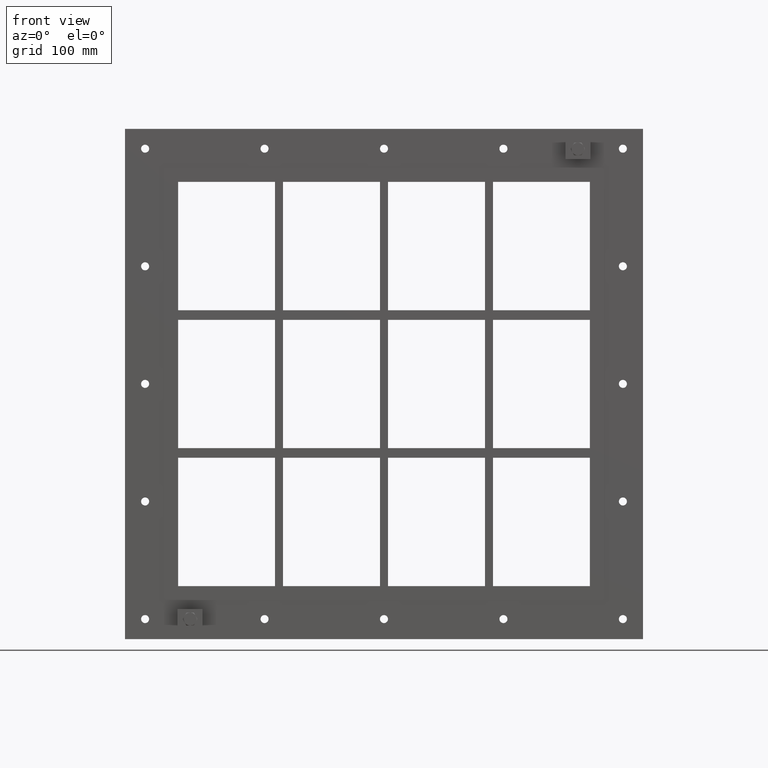
[diagram: clean part render]
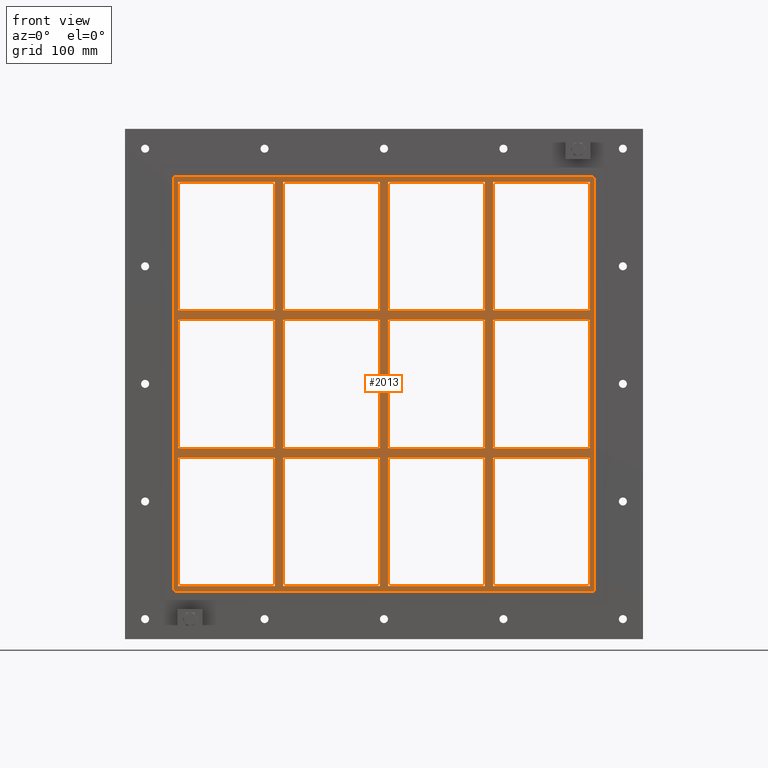
[diagram: same view with one face highlighted and labeled with its STEP entity id]
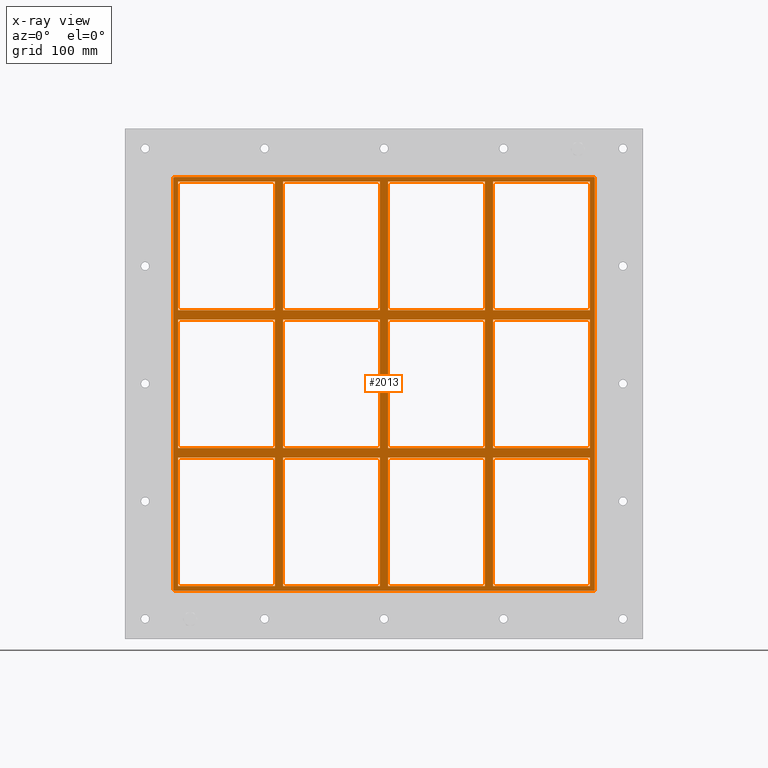
[diagram: x-ray of the same camera — body ghosted, the highlighted face saturated]
A machine part, front view. The second image highlights one B-rep face of the part: STEP entity #2013.
The next image is the same camera in x-ray: the body ghosted, the highlighted face saturated — about 0% of this face is hidden behind the body in this view.
In plain terms, the highlighted planar face has unit normal (0, 1, 0).
Its self-contained STEP definition (entity closure, byte-faithful):
#521=CARTESIAN_POINT('',(-135.50000000000031,-3.0,79.749999999989114));
#522=VERTEX_POINT('',#521);
#531=CARTESIAN_POINT('',(-255.99999999999866,-3.0,79.749999999989114));
#532=VERTEX_POINT('',#531);
#533=CARTESIAN_POINT('',(-135.50000000000034,-3.0,79.7499999999891));
#534=DIRECTION('',(-1.0,0.0,0.0));
#535=VECTOR('',#534,120.49999999999829);
#536=LINE('',#533,#535);
#537=EDGE_CURVE('',#522,#532,#536,.T.);
#561=CARTESIAN_POINT('',(-5.000000000000284,-3.0,79.749999999989086));
#562=VERTEX_POINT('',#561);
#571=CARTESIAN_POINT('',(-125.49999999999272,-3.0,79.749999999989114));
#572=VERTEX_POINT('',#571);
#573=CARTESIAN_POINT('',(-5.000000000000284,-3.0,79.749999999989086));
#574=DIRECTION('',(-1.0,0.0,0.0));
#575=VECTOR('',#574,120.49999999999244);
#576=LINE('',#573,#575);
#577=EDGE_CURVE('',#562,#572,#576,.T.);
#603=CARTESIAN_POINT('',(135.50000000000728,-3.0,79.749999999989086));
#604=VERTEX_POINT('',#603);
#619=CARTESIAN_POINT('',(256.00000000000364,-3.0,79.749999999989072));
#620=VERTEX_POINT('',#619);
#627=CARTESIAN_POINT('',(256.00000000000364,-3.0,79.749999999989072));
#628=DIRECTION('',(-1.0,0.0,0.0));
#629=VECTOR('',#628,120.49999999999636);
#630=LINE('',#627,#629);
#631=EDGE_CURVE('',#620,#604,#630,.T.);
#641=CARTESIAN_POINT('',(125.4999999999997,-3.0,79.749999999989086));
#642=VERTEX_POINT('',#641);
#651=CARTESIAN_POINT('',(5.000000000007283,-3.0,79.749999999989086));
#652=VERTEX_POINT('',#651);
#653=CARTESIAN_POINT('',(125.49999999999972,-3.0,79.749999999989086));
#654=DIRECTION('',(-1.0,0.0,0.0));
#655=VECTOR('',#654,120.49999999999244);
#656=LINE('',#653,#655);
#657=EDGE_CURVE('',#642,#652,#656,.T.);
#683=CARTESIAN_POINT('',(-135.50000000000031,-3.0,91.749999999999801));
#684=VERTEX_POINT('',#683);
#699=CARTESIAN_POINT('',(-255.99999999999866,-3.0,91.749999999999801));
#700=VERTEX_POINT('',#699);
#707=CARTESIAN_POINT('',(-255.99999999999866,-3.0,91.749999999999801));
#708=DIRECTION('',(1.0,0.0,0.0));
#709=VECTOR('',#708,120.49999999999835);
#710=LINE('',#707,#709);
#711=EDGE_CURVE('',#700,#684,#710,.T.);
#721=CARTESIAN_POINT('',(135.50000000000728,-3.0,91.749999999999801));
#722=VERTEX_POINT('',#721);
#731=CARTESIAN_POINT('',(255.99999999999955,-3.0,91.749999999999801));
#732=VERTEX_POINT('',#731);
#733=CARTESIAN_POINT('',(135.5000000000073,-3.0,91.749999999999801));
#734=DIRECTION('',(1.0,0.0,0.0));
#735=VECTOR('',#734,120.49999999999221);
#736=LINE('',#733,#735);
#737=EDGE_CURVE('',#722,#732,#736,.T.);
#763=CARTESIAN_POINT('',(-5.000000000000284,-3.0,91.749999999999801));
#764=VERTEX_POINT('',#763);
#779=CARTESIAN_POINT('',(-125.49999999999272,-3.0,91.749999999999801));
#780=VERTEX_POINT('',#779);
#787=CARTESIAN_POINT('',(-125.49999999999272,-3.0,91.749999999999801));
#788=DIRECTION('',(1.0,0.0,0.0));
#789=VECTOR('',#788,120.49999999999244);
#790=LINE('',#787,#789);
#791=EDGE_CURVE('',#780,#764,#790,.T.);
#803=CARTESIAN_POINT('',(125.49999999999969,-3.0,91.749999999999801));
#804=VERTEX_POINT('',#803);
#819=CARTESIAN_POINT('',(5.000000000007283,-3.0,91.749999999999801));
#820=VERTEX_POINT('',#819);
#827=CARTESIAN_POINT('',(5.000000000007304,-3.0,91.749999999999801));
#828=DIRECTION('',(1.0,0.0,0.0));
#829=VECTOR('',#828,120.49999999999238);
#830=LINE('',#827,#829);
#831=EDGE_CURVE('',#820,#804,#830,.T.);
#850=CARTESIAN_POINT('',(-256.0,-3.0,251.25000000000003));
#851=VERTEX_POINT('',#850);
#858=CARTESIAN_POINT('',(-256.00000000000006,-3.0,91.749999999999815));
#859=DIRECTION('',(0.0,0.0,1.0));
#860=VECTOR('',#859,159.50000000000023);
#861=LINE('',#858,#860);
#862=EDGE_CURVE('',#700,#851,#861,.T.);
#881=CARTESIAN_POINT('',(255.99999999999955,-3.0,-79.750000000000227));
#882=VERTEX_POINT('',#881);
#889=CARTESIAN_POINT('',(256.0,-3.0,79.749999999989072));
#890=DIRECTION('',(0.0,0.0,-1.0));
#891=VECTOR('',#890,159.49999999998929);
#892=LINE('',#889,#891);
#893=EDGE_CURVE('',#620,#882,#892,.T.);
#904=CARTESIAN_POINT('',(256.0,-3.0,251.25000000000003));
#905=VERTEX_POINT('',#904);
#906=CARTESIAN_POINT('',(256.0,-3.0,251.25000000000003));
#907=DIRECTION('',(0.0,0.0,-1.0));
#908=VECTOR('',#907,159.50000000000023);
#909=LINE('',#906,#908);
#910=EDGE_CURVE('',#905,#732,#909,.T.);
#935=CARTESIAN_POINT('',(125.49999999999969,-3.0,251.25000000000003));
#936=VERTEX_POINT('',#935);
#937=CARTESIAN_POINT('',(125.49999999999972,-3.0,91.749999999999801));
#938=DIRECTION('',(0.0,0.0,1.0));
#939=VECTOR('',#938,159.50000000000023);
#940=LINE('',#937,#939);
#941=EDGE_CURVE('',#804,#936,#940,.T.);
#974=CARTESIAN_POINT('',(135.50000000000728,-3.0,251.25000000000003));
#975=VERTEX_POINT('',#974);
#982=CARTESIAN_POINT('',(135.50000000000728,-3.0,251.25000000000003));
#983=DIRECTION('',(0.0,0.0,-1.0));
#984=VECTOR('',#983,159.50000000000023);
#985=LINE('',#982,#984);
#986=EDGE_CURVE('',#975,#722,#985,.T.);
#997=CARTESIAN_POINT('',(-5.00000000000032,-3.0,251.25000000000003));
#998=VERTEX_POINT('',#997);
#999=CARTESIAN_POINT('',(-5.000000000000298,-3.0,91.749999999999801));
#1000=DIRECTION('',(0.0,0.0,1.0));
#1001=VECTOR('',#1000,159.50000000000023);
#1002=LINE('',#999,#1001);
#1003=EDGE_CURVE('',#764,#998,#1002,.T.);
#1036=CARTESIAN_POINT('',(5.000000000007283,-3.0,251.25000000000003));
#1037=VERTEX_POINT('',#1036);
#1044=CARTESIAN_POINT('',(5.000000000007283,-3.0,251.25000000000003));
#1045=DIRECTION('',(0.0,0.0,-1.0));
#1046=VECTOR('',#1045,159.50000000000023);
#1047=LINE('',#1044,#1046);
#1048=EDGE_CURVE('',#1037,#820,#1047,.T.);
#1059=CARTESIAN_POINT('',(-135.50000000000034,-3.0,251.25000000000003));
#1060=VERTEX_POINT('',#1059);
#1061=CARTESIAN_POINT('',(-135.50000000000031,-3.0,91.749999999999801));
#1062=DIRECTION('',(0.0,0.0,1.0));
#1063=VECTOR('',#1062,159.50000000000023);
#1064=LINE('',#1061,#1063);
#1065=EDGE_CURVE('',#684,#1060,#1064,.T.);
#1098=CARTESIAN_POINT('',(-135.50000000000028,-3.0,-79.750000000000227));
#1099=VERTEX_POINT('',#1098);
#1106=CARTESIAN_POINT('',(-135.50000000000028,-3.0,-79.750000000000227));
#1107=DIRECTION('',(0.0,0.0,1.0));
#1108=VECTOR('',#1107,159.49999999998934);
#1109=LINE('',#1106,#1108);
#1110=EDGE_CURVE('',#1099,#522,#1109,.T.);
#1129=CARTESIAN_POINT('',(-125.49999999999272,-3.0,251.25000000000003));
#1130=VERTEX_POINT('',#1129);
#1137=CARTESIAN_POINT('',(-125.49999999999272,-3.0,251.25000000000003));
#1138=DIRECTION('',(0.0,0.0,-1.0));
#1139=VECTOR('',#1138,159.50000000000023);
#1140=LINE('',#1137,#1139);
#1141=EDGE_CURVE('',#1130,#780,#1140,.T.);
#1477=CARTESIAN_POINT('',(125.49999999999974,-3.0,-79.750000000000227));
#1478=VERTEX_POINT('',#1477);
#1485=CARTESIAN_POINT('',(125.49999999999973,-3.0,-79.750000000000227));
#1486=DIRECTION('',(0.0,0.0,1.0));
#1487=VECTOR('',#1486,159.49999999998934);
#1488=LINE('',#1485,#1487);
#1489=EDGE_CURVE('',#1478,#642,#1488,.T.);
#1499=CARTESIAN_POINT('',(125.49999999999974,-3.0,-91.750000000010928));
#1500=VERTEX_POINT('',#1499);
#1508=CARTESIAN_POINT('',(125.49999999999976,-3.0,-251.25000000000003));
#1509=VERTEX_POINT('',#1508);
#1516=CARTESIAN_POINT('',(125.49999999999976,-3.0,-251.25000000000003));
#1517=DIRECTION('',(0.0,0.0,1.0));
#1518=VECTOR('',#1517,159.49999999998911);
#1519=LINE('',#1516,#1518);
#1520=EDGE_CURVE('',#1509,#1500,#1519,.T.);
#1531=CARTESIAN_POINT('',(135.50000000000728,-3.0,-79.750000000000199));
#1532=VERTEX_POINT('',#1531);
#1533=CARTESIAN_POINT('',(135.50000000000728,-3.0,79.749999999989058));
#1534=DIRECTION('',(0.0,0.0,-1.0));
#1535=VECTOR('',#1534,159.49999999998926);
#1536=LINE('',#1533,#1535);
#1537=EDGE_CURVE('',#604,#1532,#1536,.T.);
#1554=CARTESIAN_POINT('',(135.50000000000728,-3.0,-91.750000000010942));
#1555=VERTEX_POINT('',#1554);
#1562=CARTESIAN_POINT('',(135.50000000000728,-3.0,-251.24999999998175));
#1563=VERTEX_POINT('',#1562);
#1564=CARTESIAN_POINT('',(135.50000000000728,-3.0,-91.750000000010942));
#1565=DIRECTION('',(0.0,0.0,-1.0));
#1566=VECTOR('',#1565,159.49999999997084);
#1567=LINE('',#1564,#1566);
#1568=EDGE_CURVE('',#1555,#1563,#1567,.T.);
#1587=CARTESIAN_POINT('',(-5.000000000000274,-3.0,-79.750000000000227));
#1588=VERTEX_POINT('',#1587);
#1595=CARTESIAN_POINT('',(-5.000000000000273,-3.0,-79.750000000000227));
#1596=DIRECTION('',(0.0,0.0,1.0));
#1597=VECTOR('',#1596,159.49999999998934);
#1598=LINE('',#1595,#1597);
#1599=EDGE_CURVE('',#1588,#562,#1598,.T.);
#1609=CARTESIAN_POINT('',(-5.000000000000271,-3.0,-91.750000000010928));
#1610=VERTEX_POINT('',#1609);
#1618=CARTESIAN_POINT('',(-5.000000000000249,-3.0,-251.25000000000003));
#1619=VERTEX_POINT('',#1618);
#1626=CARTESIAN_POINT('',(-5.000000000000249,-3.0,-251.25000000000003));
#1627=DIRECTION('',(0.0,0.0,1.0));
#1628=VECTOR('',#1627,159.49999999998911);
#1629=LINE('',#1626,#1628);
#1630=EDGE_CURVE('',#1619,#1610,#1629,.T.);
#1641=CARTESIAN_POINT('',(5.000000000007283,-3.0,-79.750000000000199));
#1642=VERTEX_POINT('',#1641);
#1643=CARTESIAN_POINT('',(5.000000000007283,-3.0,79.749999999989114));
#1644=DIRECTION('',(0.0,0.0,-1.0));
#1645=VECTOR('',#1644,159.49999999998931);
#1646=LINE('',#1643,#1645);
#1647=EDGE_CURVE('',#652,#1642,#1646,.T.);
#1664=CARTESIAN_POINT('',(5.000000000007283,-3.0,-91.750000000010942));
#1665=VERTEX_POINT('',#1664);
#1672=CARTESIAN_POINT('',(5.000000000007283,-3.0,-251.24999999998175));
#1673=VERTEX_POINT('',#1672);
#1674=CARTESIAN_POINT('',(5.000000000007283,-3.0,-91.750000000010942));
#1675=DIRECTION('',(0.0,0.0,-1.0));
#1676=VECTOR('',#1675,159.49999999997084);
#1677=LINE('',#1674,#1676);
#1678=EDGE_CURVE('',#1665,#1673,#1677,.T.);
#1697=CARTESIAN_POINT('',(-125.49999999999272,-3.0,-251.24999999998175));
#1698=VERTEX_POINT('',#1697);
#1705=CARTESIAN_POINT('',(-5.000000000000256,-3.0,-251.25000000000003));
#1706=DIRECTION('',(-1.0,0.0,0.0));
#1707=VECTOR('',#1706,120.49999999999247);
#1708=LINE('',#1705,#1707);
#1709=EDGE_CURVE('',#1619,#1698,#1708,.T.);
#1722=CARTESIAN_POINT('',(125.49999999999974,-3.0,-251.25000000000003));
#1723=DIRECTION('',(-1.0,0.0,0.0));
#1724=VECTOR('',#1723,120.49999999999247);
#1725=LINE('',#1722,#1724);
#1726=EDGE_CURVE('',#1509,#1673,#1725,.T.);
#1737=CARTESIAN_POINT('',(256.0,-3.0,-251.25000000000003));
#1738=VERTEX_POINT('',#1737);
#1739=CARTESIAN_POINT('',(256.0,-3.0,-251.25000000000003));
#1740=DIRECTION('',(-1.0,0.0,0.0));
#1741=VECTOR('',#1740,120.49999999999272);
#1742=LINE('',#1739,#1741);
#1743=EDGE_CURVE('',#1738,#1563,#1742,.T.);
#1755=CARTESIAN_POINT('',(0.0,-3.0,0.0));
#1756=DIRECTION('',(0.0,1.0,0.0));
#1757=DIRECTION('',(0.0,0.0,1.0));
#1758=AXIS2_PLACEMENT_3D('',#1755,#1756,#1757);
#1759=PLANE('',#1758);
#1760=CARTESIAN_POINT('',(-260.0,-3.0,-257.25));
#1761=VERTEX_POINT('',#1760);
#1762=CARTESIAN_POINT('',(-262.0,-3.0,-255.25));
#1763=VERTEX_POINT('',#1762);
#1764=CARTESIAN_POINT('',(-260.0,-3.0,-255.25));
#1765=DIRECTION('',(0.0,1.0,0.0));
#1766=DIRECTION('',(-0.707106781186548,0.0,-0.707106781186548));
#1767=AXIS2_PLACEMENT_3D('',#1764,#1765,#1766);
#1768=CIRCLE('',#1767,2.0);
#1769=EDGE_CURVE('',#1761,#1763,#1768,.T.);
#1770=ORIENTED_EDGE('',*,*,#1769,.F.);
#1771=CARTESIAN_POINT('',(260.0,-3.0,-257.25));
#1772=VERTEX_POINT('',#1771);
#1773=CARTESIAN_POINT('',(-260.0,-3.0,-257.25));
#1774=DIRECTION('',(1.0,0.0,0.0));
#1775=VECTOR('',#1774,520.0);
#1776=LINE('',#1773,#1775);
#1777=EDGE_CURVE('',#1761,#1772,#1776,.T.);
#1778=ORIENTED_EDGE('',*,*,#1777,.T.);
#1779=CARTESIAN_POINT('',(262.0,-3.0,-255.25));
#1780=VERTEX_POINT('',#1779);
#1781=CARTESIAN_POINT('',(260.0,-3.0,-255.25));
#1782=DIRECTION('',(0.0,1.0,0.0));
#1783=DIRECTION('',(0.707106781186548,0.0,-0.707106781186548));
#1784=AXIS2_PLACEMENT_3D('',#1781,#1782,#1783);
#1785=CIRCLE('',#1784,2.0);
#1786=EDGE_CURVE('',#1780,#1772,#1785,.T.);
#1787=ORIENTED_EDGE('',*,*,#1786,.F.);
#1788=CARTESIAN_POINT('',(262.0,-3.0,255.25000000000003));
#1789=VERTEX_POINT('',#1788);
#1790=CARTESIAN_POINT('',(262.0,-3.0,-255.25));
#1791=DIRECTION('',(0.0,0.0,1.0));
#1792=VECTOR('',#1791,510.5);
#1793=LINE('',#1790,#1792);
#1794=EDGE_CURVE('',#1780,#1789,#1793,.T.);
#1795=ORIENTED_EDGE('',*,*,#1794,.T.);
#1796=CARTESIAN_POINT('',(260.0,-3.0,257.25));
#1797=VERTEX_POINT('',#1796);
#1798=CARTESIAN_POINT('',(260.0,-3.0,255.25000000000003));
#1799=DIRECTION('',(0.0,1.0,0.0));
#1800=DIRECTION('',(0.70710678118656,0.0,0.707106781186535));
#1801=AXIS2_PLACEMENT_3D('',#1798,#1799,#1800);
#1802=CIRCLE('',#1801,2.0);
#1803=EDGE_CURVE('',#1797,#1789,#1802,.T.);
#1804=ORIENTED_EDGE('',*,*,#1803,.F.);
#1805=CARTESIAN_POINT('',(-260.0,-3.0,257.25));
#1806=VERTEX_POINT('',#1805);
#1807=CARTESIAN_POINT('',(260.0,-3.0,257.25));
#1808=DIRECTION('',(-1.0,0.0,0.0));
#1809=VECTOR('',#1808,520.0);
#1810=LINE('',#1807,#1809);
#1811=EDGE_CURVE('',#1797,#1806,#1810,.T.);
#1812=ORIENTED_EDGE('',*,*,#1811,.T.);
#1813=CARTESIAN_POINT('',(-262.0,-3.0,255.25));
#1814=VERTEX_POINT('',#1813);
#1815=CARTESIAN_POINT('',(-260.0,-3.0,255.25));
#1816=DIRECTION('',(0.0,1.0,0.0));
#1817=DIRECTION('',(-0.707106781186548,0.0,0.707106781186548));
#1818=AXIS2_PLACEMENT_3D('',#1815,#1816,#1817);
#1819=CIRCLE('',#1818,2.0);
#1820=EDGE_CURVE('',#1814,#1806,#1819,.T.);
#1821=ORIENTED_EDGE('',*,*,#1820,.F.);
#1822=CARTESIAN_POINT('',(-262.0,-3.0,255.25));
#1823=DIRECTION('',(0.0,0.0,-1.0));
#1824=VECTOR('',#1823,510.5);
#1825=LINE('',#1822,#1824);
#1826=EDGE_CURVE('',#1814,#1763,#1825,.T.);
#1827=ORIENTED_EDGE('',*,*,#1826,.T.);
#1828=EDGE_LOOP('',(#1770,#1778,#1787,#1795,#1804,#1812,#1821,#1827));
#1829=FACE_OUTER_BOUND('',#1828,.T.);
#1830=ORIENTED_EDGE('',*,*,#862,.T.);
#1831=CARTESIAN_POINT('',(-256.0,-3.0,251.25000000000003));
#1832=DIRECTION('',(1.0,0.0,0.0));
#1833=VECTOR('',#1832,120.49999999999966);
#1834=LINE('',#1831,#1833);
#1835=EDGE_CURVE('',#851,#1060,#1834,.T.);
#1836=ORIENTED_EDGE('',*,*,#1835,.T.);
#1837=ORIENTED_EDGE('',*,*,#1065,.F.);
#1838=ORIENTED_EDGE('',*,*,#711,.F.);
#1839=EDGE_LOOP('',(#1830,#1836,#1837,#1838));
#1840=FACE_BOUND('',#1839,.T.);
#1841=ORIENTED_EDGE('',*,*,#893,.T.);
#1842=CARTESIAN_POINT('',(135.5000000000073,-3.0,-79.750000000000227));
#1843=DIRECTION('',(1.0,0.0,0.0));
#1844=VECTOR('',#1843,120.49999999999221);
#1845=LINE('',#1842,#1844);
#1846=EDGE_CURVE('',#1532,#882,#1845,.T.);
#1847=ORIENTED_EDGE('',*,*,#1846,.F.);
#1848=ORIENTED_EDGE('',*,*,#1537,.F.);
#1849=ORIENTED_EDGE('',*,*,#631,.F.);
#1850=EDGE_LOOP('',(#1841,#1847,#1848,#1849));
#1851=FACE_BOUND('',#1850,.T.);
#1852=ORIENTED_EDGE('',*,*,#1489,.F.);
#1853=CARTESIAN_POINT('',(5.000000000007304,-3.0,-79.750000000000227));
#1854=DIRECTION('',(1.0,0.0,0.0));
#1855=VECTOR('',#1854,120.49999999999244);
#1856=LINE('',#1853,#1855);
#1857=EDGE_CURVE('',#1642,#1478,#1856,.T.);
#1858=ORIENTED_EDGE('',*,*,#1857,.F.);
#1859=ORIENTED_EDGE('',*,*,#1647,.F.);
#1860=ORIENTED_EDGE('',*,*,#657,.F.);
#1861=EDGE_LOOP('',(#1852,#1858,#1859,#1860));
#1862=FACE_BOUND('',#1861,.T.);
#1863=ORIENTED_EDGE('',*,*,#1599,.F.);
#1864=CARTESIAN_POINT('',(-125.49999999999272,-3.0,-79.750000000000227));
#1865=VERTEX_POINT('',#1864);
#1866=CARTESIAN_POINT('',(-125.49999999999272,-3.0,-79.750000000000227));
#1867=DIRECTION('',(1.0,0.0,0.0));
#1868=VECTOR('',#1867,120.49999999999244);
#1869=LINE('',#1866,#1868);
#1870=EDGE_CURVE('',#1865,#1588,#1869,.T.);
#1871=ORIENTED_EDGE('',*,*,#1870,.F.);
#1872=CARTESIAN_POINT('',(-125.49999999999272,-3.0,79.749999999989114));
#1873=DIRECTION('',(0.0,0.0,-1.0));
#1874=VECTOR('',#1873,159.49999999998931);
#1875=LINE('',#1872,#1874);
#1876=EDGE_CURVE('',#572,#1865,#1875,.T.);
#1877=ORIENTED_EDGE('',*,*,#1876,.F.);
#1878=ORIENTED_EDGE('',*,*,#577,.F.);
#1879=EDGE_LOOP('',(#1863,#1871,#1877,#1878));
#1880=FACE_BOUND('',#1879,.T.);
#1881=ORIENTED_EDGE('',*,*,#831,.F.);
#1882=ORIENTED_EDGE('',*,*,#1048,.F.);
#1883=CARTESIAN_POINT('',(5.000000000007276,-3.0,251.25000000000003));
#1884=DIRECTION('',(1.0,0.0,0.0));
#1885=VECTOR('',#1884,120.49999999999241);
#1886=LINE('',#1883,#1885);
#1887=EDGE_CURVE('',#1037,#936,#1886,.T.);
#1888=ORIENTED_EDGE('',*,*,#1887,.T.);
#1889=ORIENTED_EDGE('',*,*,#941,.F.);
#1890=EDGE_LOOP('',(#1881,#1882,#1888,#1889));
#1891=FACE_BOUND('',#1890,.T.);
#1892=ORIENTED_EDGE('',*,*,#791,.F.);
#1893=ORIENTED_EDGE('',*,*,#1141,.F.);
#1894=CARTESIAN_POINT('',(-125.49999999999272,-3.0,251.25000000000003));
#1895=DIRECTION('',(1.0,0.0,0.0));
#1896=VECTOR('',#1895,120.4999999999924);
#1897=LINE('',#1894,#1896);
#1898=EDGE_CURVE('',#1130,#998,#1897,.T.);
#1899=ORIENTED_EDGE('',*,*,#1898,.T.);
#1900=ORIENTED_EDGE('',*,*,#1003,.F.);
#1901=EDGE_LOOP('',(#1892,#1893,#1899,#1900));
#1902=FACE_BOUND('',#1901,.T.);
#1903=ORIENTED_EDGE('',*,*,#537,.F.);
#1904=ORIENTED_EDGE('',*,*,#1110,.F.);
#1905=CARTESIAN_POINT('',(-255.99999999999866,-3.0,-79.750000000000227));
#1906=VERTEX_POINT('',#1905);
#1907=CARTESIAN_POINT('',(-255.99999999999866,-3.0,-79.750000000000227));
#1908=DIRECTION('',(1.0,0.0,0.0));
#1909=VECTOR('',#1908,120.49999999999838);
#1910=LINE('',#1907,#1909);
#1911=EDGE_CURVE('',#1906,#1099,#1910,.T.);
#1912=ORIENTED_EDGE('',*,*,#1911,.F.);
#1913=CARTESIAN_POINT('',(-256.00000000000006,-3.0,-79.750000000000227));
#1914=DIRECTION('',(0.0,0.0,1.0));
#1915=VECTOR('',#1914,159.49999999998937);
#1916=LINE('',#1913,#1915);
#1917=EDGE_CURVE('',#1906,#532,#1916,.T.);
#1918=ORIENTED_EDGE('',*,*,#1917,.T.);
#1919=EDGE_LOOP('',(#1903,#1904,#1912,#1918));
#1920=FACE_BOUND('',#1919,.T.);
#1921=ORIENTED_EDGE('',*,*,#737,.F.);
#1922=ORIENTED_EDGE('',*,*,#986,.F.);
#1923=CARTESIAN_POINT('',(135.5000000000073,-3.0,251.25000000000003));
#1924=DIRECTION('',(1.0,0.0,0.0));
#1925=VECTOR('',#1924,120.4999999999927);
#1926=LINE('',#1923,#1925);
#1927=EDGE_CURVE('',#975,#905,#1926,.T.);
#1928=ORIENTED_EDGE('',*,*,#1927,.T.);
#1929=ORIENTED_EDGE('',*,*,#910,.T.);
#1930=EDGE_LOOP('',(#1921,#1922,#1928,#1929));
#1931=FACE_BOUND('',#1930,.T.);
#1932=ORIENTED_EDGE('',*,*,#1726,.T.);
#1933=ORIENTED_EDGE('',*,*,#1678,.F.);
#1934=CARTESIAN_POINT('',(125.49999999999974,-3.0,-91.750000000010928));
#1935=DIRECTION('',(-1.0,0.0,0.0));
#1936=VECTOR('',#1935,120.49999999999247);
#1937=LINE('',#1934,#1936);
#1938=EDGE_CURVE('',#1500,#1665,#1937,.T.);
#1939=ORIENTED_EDGE('',*,*,#1938,.F.);
#1940=ORIENTED_EDGE('',*,*,#1520,.F.);
#1941=EDGE_LOOP('',(#1932,#1933,#1939,#1940));
#1942=FACE_BOUND('',#1941,.T.);
#1943=ORIENTED_EDGE('',*,*,#1709,.T.);
#1944=CARTESIAN_POINT('',(-125.49999999999272,-3.0,-91.750000000010928));
#1945=VERTEX_POINT('',#1944);
#1946=CARTESIAN_POINT('',(-125.49999999999272,-3.0,-91.750000000010942));
#1947=DIRECTION('',(0.0,0.0,-1.0));
#1948=VECTOR('',#1947,159.49999999997084);
#1949=LINE('',#1946,#1948);
#1950=EDGE_CURVE('',#1945,#1698,#1949,.T.);
#1951=ORIENTED_EDGE('',*,*,#1950,.F.);
#1952=CARTESIAN_POINT('',(-5.000000000000284,-3.0,-91.750000000010928));
#1953=DIRECTION('',(-1.0,0.0,0.0));
#1954=VECTOR('',#1953,120.49999999999244);
#1955=LINE('',#1952,#1954);
#1956=EDGE_CURVE('',#1610,#1945,#1955,.T.);
#1957=ORIENTED_EDGE('',*,*,#1956,.F.);
#1958=ORIENTED_EDGE('',*,*,#1630,.F.);
#1959=EDGE_LOOP('',(#1943,#1951,#1957,#1958));
#1960=FACE_BOUND('',#1959,.T.);
#1961=ORIENTED_EDGE('',*,*,#1568,.F.);
#1962=CARTESIAN_POINT('',(256.00000000000364,-3.0,-91.750000000010942));
#1963=VERTEX_POINT('',#1962);
#1964=CARTESIAN_POINT('',(256.00000000000364,-3.0,-91.750000000010942));
#1965=DIRECTION('',(-1.0,0.0,0.0));
#1966=VECTOR('',#1965,120.49999999999636);
#1967=LINE('',#1964,#1966);
#1968=EDGE_CURVE('',#1963,#1555,#1967,.T.);
#1969=ORIENTED_EDGE('',*,*,#1968,.F.);
#1970=CARTESIAN_POINT('',(256.0,-3.0,-91.750000000010957));
#1971=DIRECTION('',(0.0,0.0,-1.0));
#1972=VECTOR('',#1971,159.49999999998909);
#1973=LINE('',#1970,#1972);
#1974=EDGE_CURVE('',#1963,#1738,#1973,.T.);
#1975=ORIENTED_EDGE('',*,*,#1974,.T.);
#1976=ORIENTED_EDGE('',*,*,#1743,.T.);
#1977=EDGE_LOOP('',(#1961,#1969,#1975,#1976));
#1978=FACE_BOUND('',#1977,.T.);
#1979=CARTESIAN_POINT('',(-135.50000000000026,-3.0,-91.750000000010914));
#1980=VERTEX_POINT('',#1979);
#1981=CARTESIAN_POINT('',(-255.99999999999866,-3.0,-91.750000000010914));
#1982=VERTEX_POINT('',#1981);
#1983=CARTESIAN_POINT('',(-135.50000000000023,-3.0,-91.750000000010914));
#1984=DIRECTION('',(-1.0,0.0,0.0));
#1985=VECTOR('',#1984,120.49999999999841);
#1986=LINE('',#1983,#1985);
#1987=EDGE_CURVE('',#1980,#1982,#1986,.T.);
#1988=ORIENTED_EDGE('',*,*,#1987,.F.);
#1989=CARTESIAN_POINT('',(-135.50000000000026,-3.0,-251.25000000000003));
#1990=VERTEX_POINT('',#1989);
#1991=CARTESIAN_POINT('',(-135.50000000000026,-3.0,-251.25000000000003));
#1992=DIRECTION('',(0.0,0.0,1.0));
#1993=VECTOR('',#1992,159.49999999998911);
#1994=LINE('',#1991,#1993);
#1995=EDGE_CURVE('',#1990,#1980,#1994,.T.);
#1996=ORIENTED_EDGE('',*,*,#1995,.F.);
#1997=CARTESIAN_POINT('',(-256.0,-3.0,-251.25000000000003));
#1998=VERTEX_POINT('',#1997);
#1999=CARTESIAN_POINT('',(-135.50000000000028,-3.0,-251.25000000000003));
#2000=DIRECTION('',(-1.0,0.0,0.0));
#2001=VECTOR('',#2000,120.49999999999977);
#2002=LINE('',#1999,#2001);
#2003=EDGE_CURVE('',#1990,#1998,#2002,.T.);
#2004=ORIENTED_EDGE('',*,*,#2003,.T.);
#2005=CARTESIAN_POINT('',(-256.00000000000006,-3.0,-251.25000000000003));
#2006=DIRECTION('',(0.0,0.0,1.0));
#2007=VECTOR('',#2006,159.49999999998911);
#2008=LINE('',#2005,#2007);
#2009=EDGE_CURVE('',#1998,#1982,#2008,.T.);
#2010=ORIENTED_EDGE('',*,*,#2009,.T.);
#2011=EDGE_LOOP('',(#1988,#1996,#2004,#2010));
#2012=FACE_BOUND('',#2011,.T.);
#2013=ADVANCED_FACE('',(#1829,#1840,#1851,#1862,#1880,#1891,#1902,#1920,#1931,#1942,#1960,#1978,#2012),#1759,.F.);